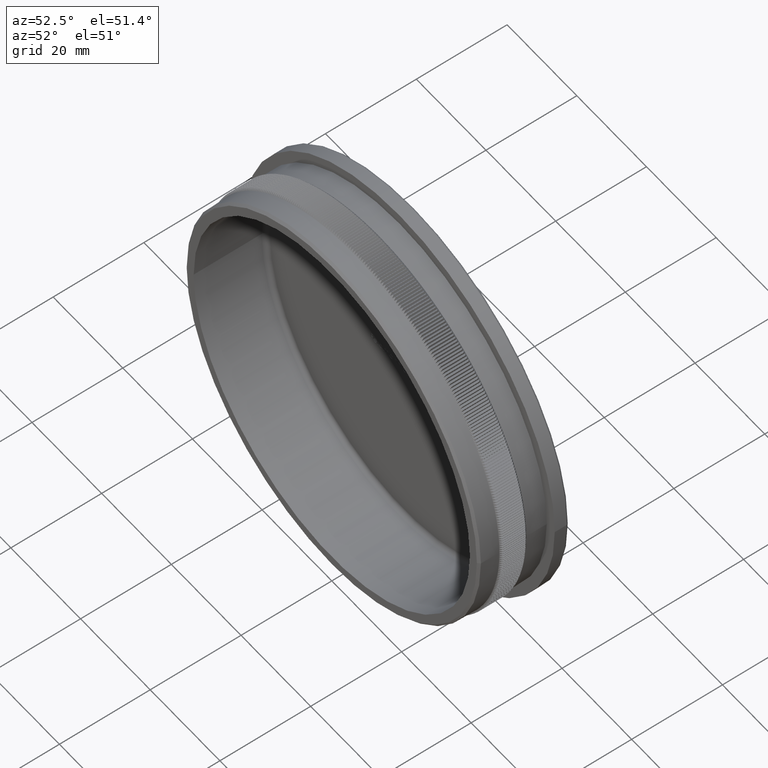
[diagram: clean part render]
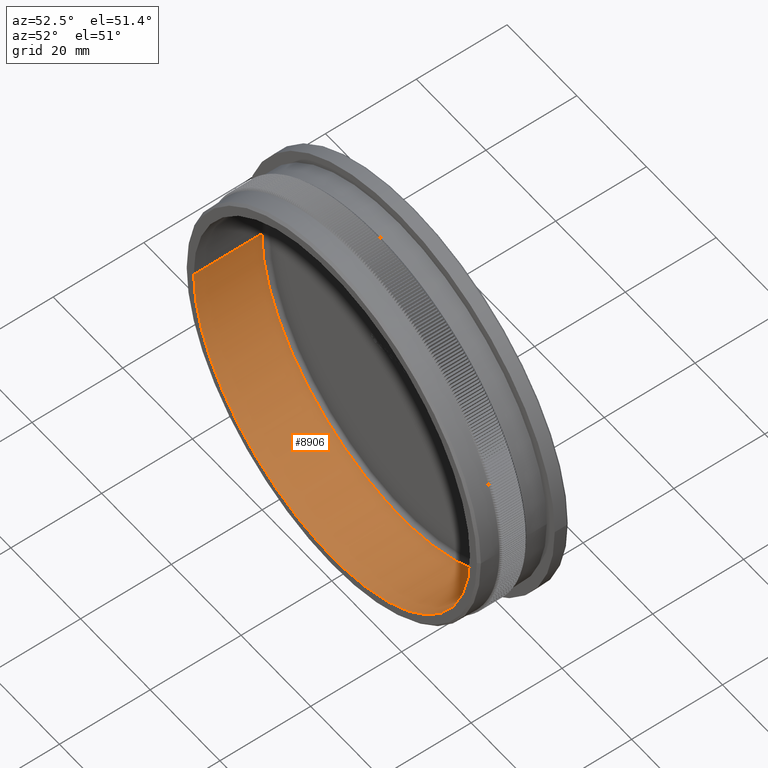
[diagram: same view with one face highlighted and labeled with its STEP entity id]
A machine part, auxiliary view. The second image highlights one B-rep face of the part: STEP entity #8906.
In plain terms, the highlighted cylindrical surface (partial cylindrical patch) has radius 39.65 mm, axis along (-0, -1, -0).
Its self-contained STEP definition (entity closure, byte-faithful):
#6554 = CARTESIAN_POINT ( 'NONE',  ( -5.192183956759301200E-014, 1.283695372222837200E-013, 0.0000000000000000000 ) ) ;
#8906 = ADVANCED_FACE ( 'NONE', ( #28934 ), #9184, .F. ) ;
#9184 = CYLINDRICAL_SURFACE ( 'NONE', #38298, 39.65000000000002000 ) ;
#10513 = VECTOR ( 'NONE', #56977, 1000.000000000000000 ) ;
#12423 = CARTESIAN_POINT ( 'NONE',  ( 1.925929944387235900E-031, 15.99999999999999300, 0.0000000000000000000 ) ) ;
#12583 = DIRECTION ( 'NONE',  ( -3.245114972974590400E-015, -1.000000000000000000, -0.0000000000000000000 ) ) ;
#14224 = VERTEX_POINT ( 'NONE', #22548 ) ;
#18605 = DIRECTION ( 'NONE',  ( 1.000000000000000000, -3.237567143058856700E-015, 0.0000000000000000000 ) ) ;
#18630 = DIRECTION ( 'NONE',  ( 1.000000000000000000, -3.245114972974590800E-015, 0.0000000000000000000 ) ) ;
#18757 = DIRECTION ( 'NONE',  ( 1.000000000000000000, -3.237567143058856700E-015, 0.0000000000000000000 ) ) ;
#20170 = EDGE_CURVE ( 'NONE', #62046, #40435, #32838, .T. ) ;
#22548 = CARTESIAN_POINT ( 'NONE',  ( 39.64999999999999900, -2.992714561589447100E-016, 0.0000000000000000000 ) ) ;
#24573 = EDGE_CURVE ( 'NONE', #25587, #14224, #42782, .T. ) ;
#25587 = VERTEX_POINT ( 'NONE', #54942 ) ;
#25703 = CARTESIAN_POINT ( 'NONE',  ( 39.65000000000002000, 15.99999999999986500, 0.0000000000000000000 ) ) ;
#28934 = FACE_OUTER_BOUND ( 'NONE', #54274, .T. ) ;
#29939 = DIRECTION ( 'NONE',  ( 3.245114972974590400E-015, 1.000000000000000000, 0.0000000000000000000 ) ) ;
#31668 = CARTESIAN_POINT ( 'NONE',  ( -39.65000000000002000, 15.00000000000018700, 4.855724558619257500E-015 ) ) ;
#31916 = DIRECTION ( 'NONE',  ( -3.245114972974590400E-015, -1.000000000000000000, -0.0000000000000000000 ) ) ;
#32838 = CIRCLE ( 'NONE', #34582, 39.65000000000002000 ) ;
#33886 = CARTESIAN_POINT ( 'NONE',  ( -39.65000000000002000, 16.00000000000012100, 4.855724558619257500E-015 ) ) ;
#34582 = AXIS2_PLACEMENT_3D ( 'NONE', #53807, #29939, #18605 ) ;
#35474 = ORIENTED_EDGE ( 'NONE', *, *, #51607, .T. ) ;
#36350 = VECTOR ( 'NONE', #73739, 1000.000000000000000 ) ;
#38298 = AXIS2_PLACEMENT_3D ( 'NONE', #12423, #31916, #18757 ) ;
#40435 = VERTEX_POINT ( 'NONE', #31668 ) ;
#41163 = CARTESIAN_POINT ( 'NONE',  ( 39.65000000000002000, 14.99999999999993100, 0.0000000000000000000 ) ) ;
#42417 = ORIENTED_EDGE ( 'NONE', *, *, #47551, .F. ) ;
#42782 = CIRCLE ( 'NONE', #46880, 39.65000000000004800 ) ;
#42856 = ORIENTED_EDGE ( 'NONE', *, *, #20170, .T. ) ;
#46880 = AXIS2_PLACEMENT_3D ( 'NONE', #6554, #12583, #18630 ) ;
#47551 = EDGE_CURVE ( 'NONE', #62046, #14224, #70105, .T. ) ;
#51607 = EDGE_CURVE ( 'NONE', #40435, #25587, #76279, .T. ) ;
#53807 = CARTESIAN_POINT ( 'NONE',  ( -3.245114972974378200E-015, 15.00000000000005900, 0.0000000000000000000 ) ) ;
#54274 = EDGE_LOOP ( 'NONE', ( #42856, #35474, #76526, #42417 ) ) ;
#54942 = CARTESIAN_POINT ( 'NONE',  ( -39.65000000000010500, 2.570383459007264300E-013, 4.855724558619263800E-015 ) ) ;
#56977 = DIRECTION ( 'NONE',  ( -3.245114972974590400E-015, -1.000000000000000000, -0.0000000000000000000 ) ) ;
#62046 = VERTEX_POINT ( 'NONE', #41163 ) ;
#70105 = LINE ( 'NONE', #25703, #36350 ) ;
#73739 = DIRECTION ( 'NONE',  ( -3.245114972974590400E-015, -1.000000000000000000, -0.0000000000000000000 ) ) ;
#76279 = LINE ( 'NONE', #33886, #10513 ) ;
#76526 = ORIENTED_EDGE ( 'NONE', *, *, #24573, .T. ) ;